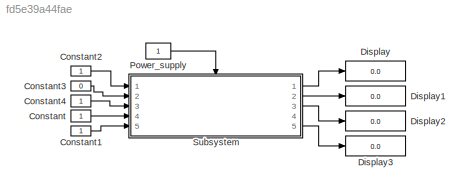
MODEL slx_fd5e39a44fae
KIND model
CONFIG AbsTol = auto
CONFIG EnableMultiTasking = off
CONFIG FixedStep = auto
CONFIG MaxStep = auto
CONFIG MinStep = auto
CONFIG RelTol = 1e-3
CONFIG SampleTimeConstraint = Unconstrained
CONFIG SolverName = VariableStepAuto
CONFIG StartTime = 0.0
CONFIG StopTime = 10.0
BLOCK [Constant] Constant
BLOCK [Constant] Constant1
BLOCK [Constant] Constant2
BLOCK [Constant] Constant3
  Value = 0
BLOCK [Constant] Constant4
BLOCK [Display] Display
  Decimation = 1
  Ports = [1]
BLOCK [Display] Display1
  Decimation = 1
  Ports = [1]
BLOCK [Display] Display2
  Decimation = 1
  Ports = [1]
BLOCK [Display] Display3
  Decimation = 1
  Ports = [1]
BLOCK [Constant] Power_supply
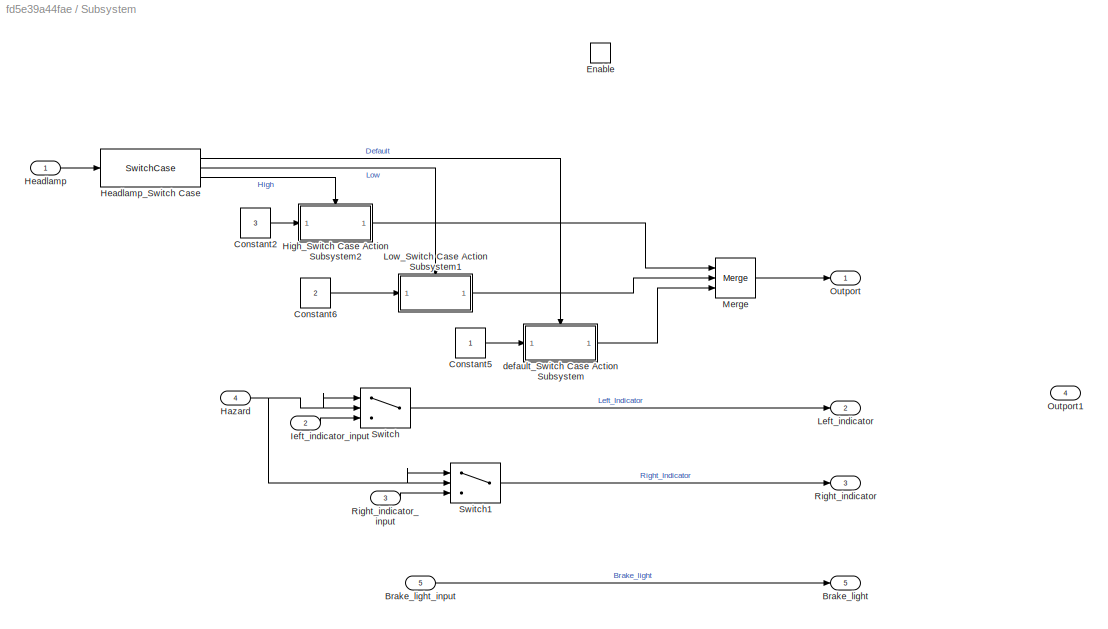
BLOCK [SubSystem] Subsystem
  Ports = [5, 5, 1]
  RequestExecContextInheritance = off
BLOCK [Outport] Subsystem/Brake_light
  Port = 5
BLOCK [Inport] Subsystem/Brake_light_input
  Port = 5
BLOCK [Constant] Subsystem/Constant2
  Value = 3
BLOCK [Constant] Subsystem/Constant5
BLOCK [Constant] Subsystem/Constant6
  Value = 2
BLOCK [EnablePort] Subsystem/Enable
  Ports = []
BLOCK [Inport] Subsystem/Hazard
  Port = 4
BLOCK [Inport] Subsystem/Headlamp
BLOCK [SwitchCase] Subsystem/Headlamp_Switch Case
  CaseConditions = {0,-1,1}
  Ports = [1, 3]
  ShowDefaultCase = off
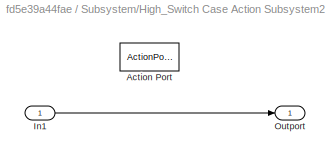
BLOCK [SubSystem] Subsystem/High_Switch Case Action Subsystem2
  Ports = [1, 1, 0, 0, 0, 0, 0, 1]
  RequestExecContextInheritance = off
  TreatAsAtomicUnit = on
BLOCK [ActionPort] Subsystem/High_Switch Case Action Subsystem2/Action Port
  ActionPortLabel = case [ 1 ]:
BLOCK [Inport] Subsystem/High_Switch Case Action Subsystem2/In1
BLOCK [Outport] Subsystem/High_Switch Case Action Subsystem2/Outport
BLOCK [Inport] Subsystem/Ieft_indicator_input
  Port = 2
BLOCK [Outport] Subsystem/Left_indicator
  Port = 2
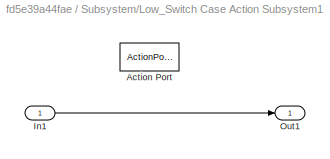
BLOCK [SubSystem] Subsystem/Low_Switch Case Action Subsystem1
  Ports = [1, 1, 0, 0, 0, 0, 0, 1]
  RequestExecContextInheritance = off
  TreatAsAtomicUnit = on
BLOCK [ActionPort] Subsystem/Low_Switch Case Action Subsystem1/Action Port
  ActionPortLabel = case [ -1 ]:
BLOCK [Inport] Subsystem/Low_Switch Case Action Subsystem1/In1
BLOCK [Outport] Subsystem/Low_Switch Case Action Subsystem1/Out1
BLOCK [Merge] Subsystem/Merge
  Inputs = 3
  Ports = [3, 1]
BLOCK [Outport] Subsystem/Outport
BLOCK [Outport] Subsystem/Outport1
  Port = 4
BLOCK [Outport] Subsystem/Right_indicator
  Port = 3
BLOCK [Inport] Subsystem/Right_indicator_input
  Port = 3
BLOCK [Switch] Subsystem/Switch
  Criteria = u2 > Threshold
  InputSameDT = off
  SaturateOnIntegerOverflow = off
BLOCK [Switch] Subsystem/Switch1
  Criteria = u2 > Threshold
  InputSameDT = off
  SaturateOnIntegerOverflow = off
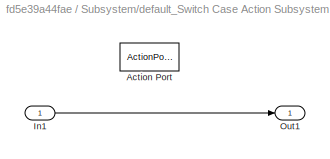
BLOCK [SubSystem] Subsystem/default_Switch Case Action Subsystem
  Ports = [1, 1, 0, 0, 0, 0, 0, 1]
  RequestExecContextInheritance = off
  TreatAsAtomicUnit = on
BLOCK [ActionPort] Subsystem/default_Switch Case Action Subsystem/Action Port
  ActionPortLabel = case [ 0 ]:
BLOCK [Inport] Subsystem/default_Switch Case Action Subsystem/In1
BLOCK [Outport] Subsystem/default_Switch Case Action Subsystem/Out1
LINE Constant1:1 -> Subsystem:5
LINE Constant2:1 -> Subsystem:1
LINE Constant3:1 -> Subsystem:2
LINE Constant4:1 -> Subsystem:3
LINE Constant:1 -> Subsystem:4
LINE Power_supply:1 -> Subsystem:enable
LINE Subsystem/Brake_light_input:1 -> Subsystem/Brake_light:1
LINE Subsystem/Constant2:1 -> Subsystem/High_Switch Case Action Subsystem2:1
LINE Subsystem/Constant5:1 -> Subsystem/default_Switch Case Action Subsystem:1
LINE Subsystem/Constant6:1 -> Subsystem/Low_Switch Case Action Subsystem1:1
NET Subsystem/Hazard:1 -> Subsystem/Switch1:1, Subsystem/Switch1:2, Subsystem/Switch:1, Subsystem/Switch:2
LINE Subsystem/Headlamp:1 -> Subsystem/Headlamp_Switch Case:1
LINE Subsystem/Headlamp_Switch Case:1 -> Subsystem/default_Switch Case Action Subsystem:ifaction
LINE Subsystem/Headlamp_Switch Case:2 -> Subsystem/Low_Switch Case Action Subsystem1:ifaction
LINE Subsystem/Headlamp_Switch Case:3 -> Subsystem/High_Switch Case Action Subsystem2:ifaction
LINE Subsystem/High_Switch Case Action Subsystem2/In1:1 -> Subsystem/High_Switch Case Action Subsystem2/Outport:1
LINE Subsystem/High_Switch Case Action Subsystem2:1 -> Subsystem/Merge:1
LINE Subsystem/Ieft_indicator_input:1 -> Subsystem/Switch:3
LINE Subsystem/Low_Switch Case Action Subsystem1/In1:1 -> Subsystem/Low_Switch Case Action Subsystem1/Out1:1
LINE Subsystem/Low_Switch Case Action Subsystem1:1 -> Subsystem/Merge:2
LINE Subsystem/Merge:1 -> Subsystem/Outport:1
LINE Subsystem/Right_indicator_input:1 -> Subsystem/Switch1:3
LINE Subsystem/Switch1:1 -> Subsystem/Right_indicator:1
LINE Subsystem/Switch:1 -> Subsystem/Left_indicator:1
LINE Subsystem/default_Switch Case Action Subsystem/In1:1 -> Subsystem/default_Switch Case Action Subsystem/Out1:1
LINE Subsystem/default_Switch Case Action Subsystem:1 -> Subsystem/Merge:3
LINE Subsystem:1 -> Display:1
LINE Subsystem:2 -> Display1:1
LINE Subsystem:3 -> Display2:1
LINE Subsystem:5 -> Display3:1
note: NET lines group one-source signal fan-out (src -> all destinations, sorted); 1:1 wires keep LINE
